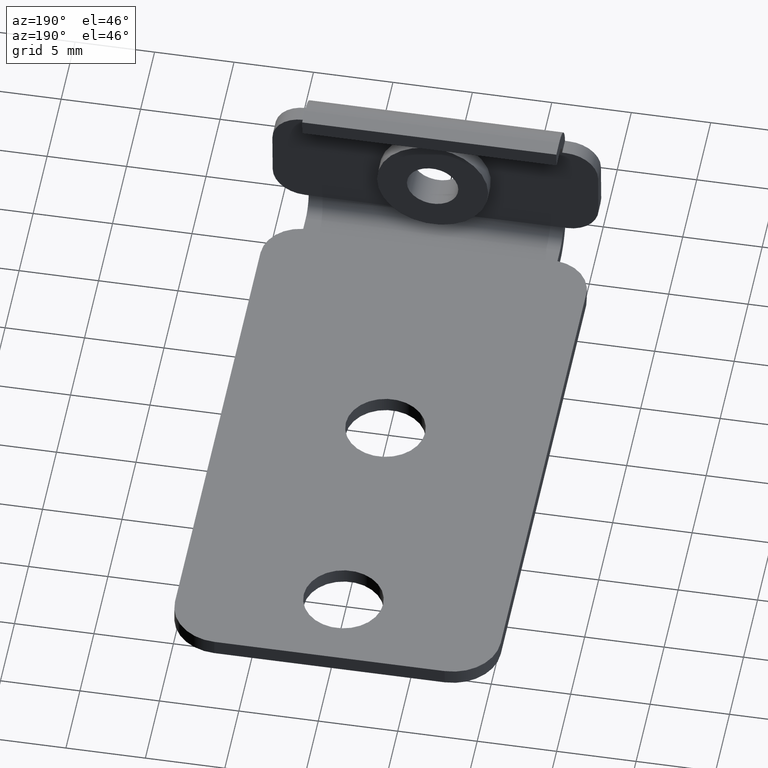
[diagram: clean part render]
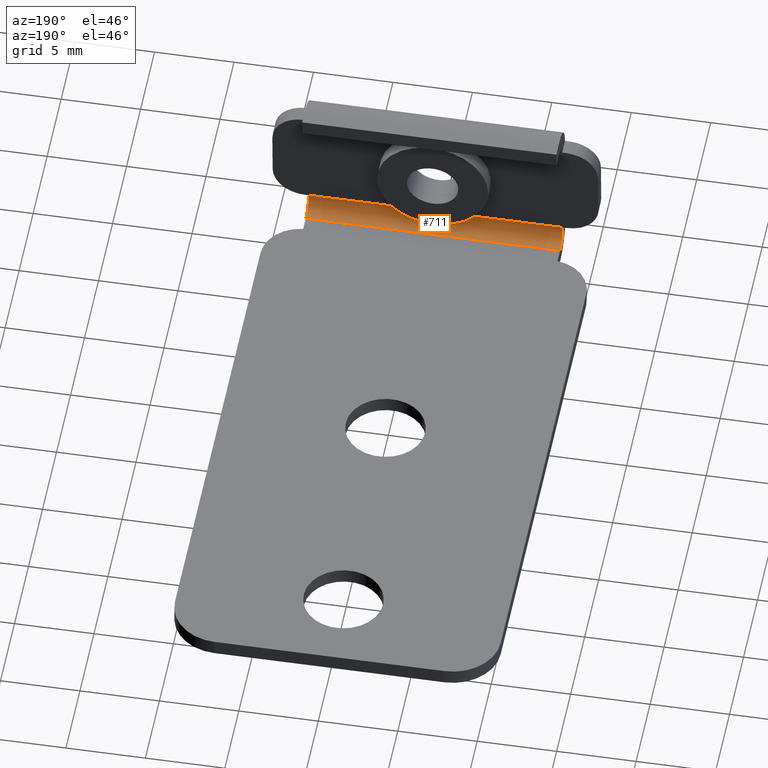
[diagram: same view with one face highlighted and labeled with its STEP entity id]
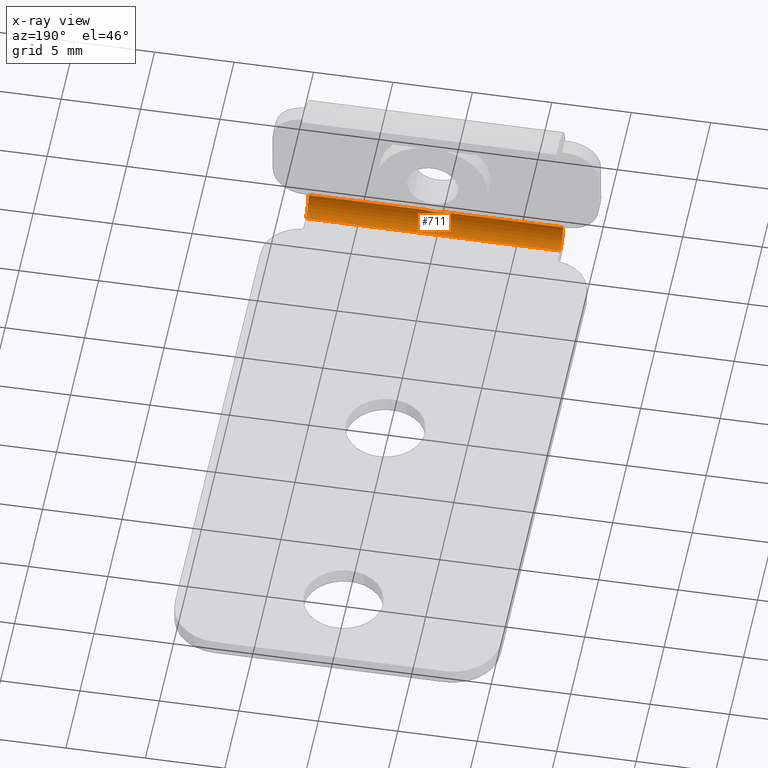
[diagram: x-ray of the same camera — body ghosted, the highlighted face saturated]
A machine part, auxiliary view. The second image highlights one B-rep face of the part: STEP entity #711.
The next image is the same camera in x-ray: the body ghosted, the highlighted face saturated — about 0% of this face is hidden behind the body in this view.
In plain terms, the highlighted cylindrical surface (edge-blend (fillet) strip) has radius 1 mm, axis along (-1, 0, 0).
Its self-contained STEP definition (entity closure, byte-faithful):
#15=B_SPLINE_CURVE_WITH_KNOTS('',3,(#1148,#1149,#1150,#1151,#1152,#1153),
 .UNSPECIFIED.,.F.,.F.,(4,2,4),(0.245160806914058,0.312360595900493,0.379560384886928),
 .UNSPECIFIED.);
#63=FACE_OUTER_BOUND('',#107,.T.);
#107=EDGE_LOOP('',(#548,#549,#550,#551,#552,#553));
#146=LINE('',#1086,#214);
#168=LINE('',#1157,#236);
#169=LINE('',#1161,#237);
#214=VECTOR('',#861,10.);
#236=VECTOR('',#929,10.);
#237=VECTOR('',#932,10.);
#288=CIRCLE('',#791,1.);
#289=CIRCLE('',#792,1.);
#312=VERTEX_POINT('',#1070);
#318=VERTEX_POINT('',#1084);
#327=VERTEX_POINT('',#1111);
#338=VERTEX_POINT('',#1146);
#339=VERTEX_POINT('',#1158);
#340=VERTEX_POINT('',#1160);
#383=EDGE_CURVE('',#318,#312,#146,.T.);
#414=EDGE_CURVE('',#318,#338,#15,.T.);
#416=EDGE_CURVE('',#327,#338,#168,.T.);
#417=EDGE_CURVE('',#327,#339,#288,.T.);
#418=EDGE_CURVE('',#340,#339,#169,.T.);
#419=EDGE_CURVE('',#312,#340,#289,.T.);
#548=ORIENTED_EDGE('',*,*,#414,.T.);
#549=ORIENTED_EDGE('',*,*,#416,.F.);
#550=ORIENTED_EDGE('',*,*,#417,.T.);
#551=ORIENTED_EDGE('',*,*,#418,.F.);
#552=ORIENTED_EDGE('',*,*,#419,.F.);
#553=ORIENTED_EDGE('',*,*,#383,.F.);
#686=CYLINDRICAL_SURFACE('',#790,1.);
#711=ADVANCED_FACE('',(#63),#686,.F.);
#790=AXIS2_PLACEMENT_3D('',#1156,#927,#928);
#791=AXIS2_PLACEMENT_3D('',#1159,#930,#931);
#792=AXIS2_PLACEMENT_3D('',#1162,#933,#934);
#861=DIRECTION('',(-1.,1.278861215407E-19,-4.46588177151641E-21));
#927=DIRECTION('center_axis',(-1.,0.,0.));
#928=DIRECTION('ref_axis',(0.,0.,-1.));
#929=DIRECTION('',(-1.,1.278861215407E-19,-4.46588177151641E-21));
#930=DIRECTION('center_axis',(1.,0.,0.));
#931=DIRECTION('ref_axis',(0.,-0.999390827019096,0.034899496702501));
#932=DIRECTION('',(1.,0.,0.));
#933=DIRECTION('center_axis',(1.,0.,0.));
#934=DIRECTION('ref_axis',(0.,-0.999390827019096,0.034899496702501));
#1070=CARTESIAN_POINT('',(-8.,-1.92833019943796,1.0348994967025));
#1084=CARTESIAN_POINT('',(-0.701694221349839,-1.92833019943796,1.0348994967025));
#1086=CARTESIAN_POINT('',(2.81520962353363E-20,-1.92833019943796,1.0348994967025));
#1111=CARTESIAN_POINT('',(8.,-1.92833019943796,1.0348994967025));
#1146=CARTESIAN_POINT('',(0.701694221349839,-1.92833019943796,1.0348994967025));
#1148=CARTESIAN_POINT('Ctrl Pts',(-0.701694221349839,-1.92833019943796,
1.0348994967025));
#1149=CARTESIAN_POINT('Ctrl Pts',(-0.464512367111148,-1.9300241031413,0.986392441216772));
#1150=CARTESIAN_POINT('Ctrl Pts',(-0.22399929662145,-1.92828371777365,0.963793931345462));
#1151=CARTESIAN_POINT('Ctrl Pts',(0.22399929662145,-1.92828371777365,0.963793931345462));
#1152=CARTESIAN_POINT('Ctrl Pts',(0.464512367111148,-1.9300241031413,0.986392441216772));
#1153=CARTESIAN_POINT('Ctrl Pts',(0.701694221349839,-1.92833019943796,1.0348994967025));
#1156=CARTESIAN_POINT('Origin',(0.,-0.928939372418861,1.));
#1157=CARTESIAN_POINT('',(2.81520962353363E-20,-1.92833019943796,1.0348994967025));
#1158=CARTESIAN_POINT('',(8.,-0.928939372418861,0.));
#1159=CARTESIAN_POINT('Origin',(8.,-0.928939372418861,1.));
#1160=CARTESIAN_POINT('',(-8.,-0.928939372418861,0.));
#1161=CARTESIAN_POINT('',(4.,-0.928939372418861,0.));
#1162=CARTESIAN_POINT('Origin',(-8.,-0.928939372418861,1.));